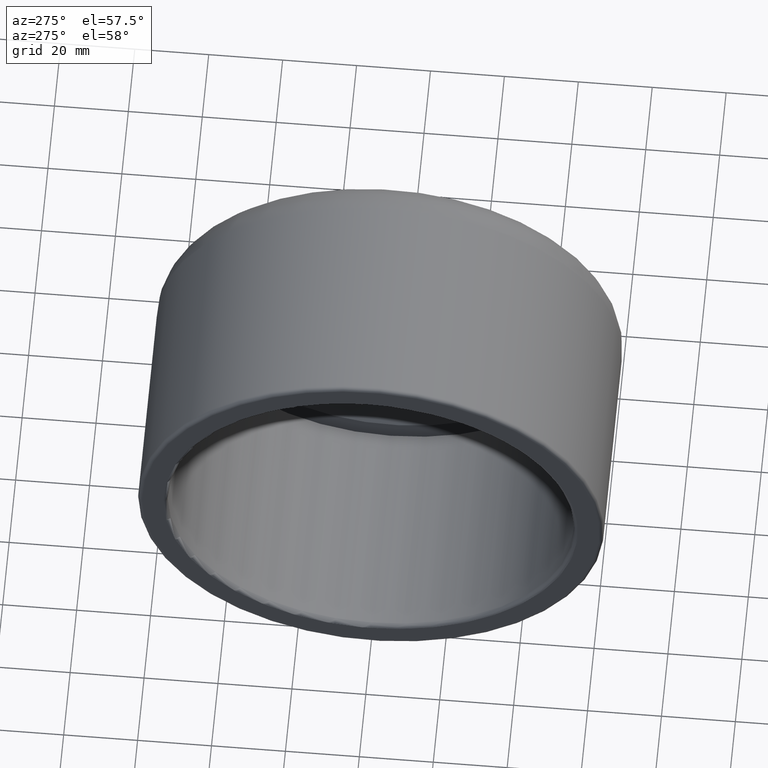
[diagram: clean part render]
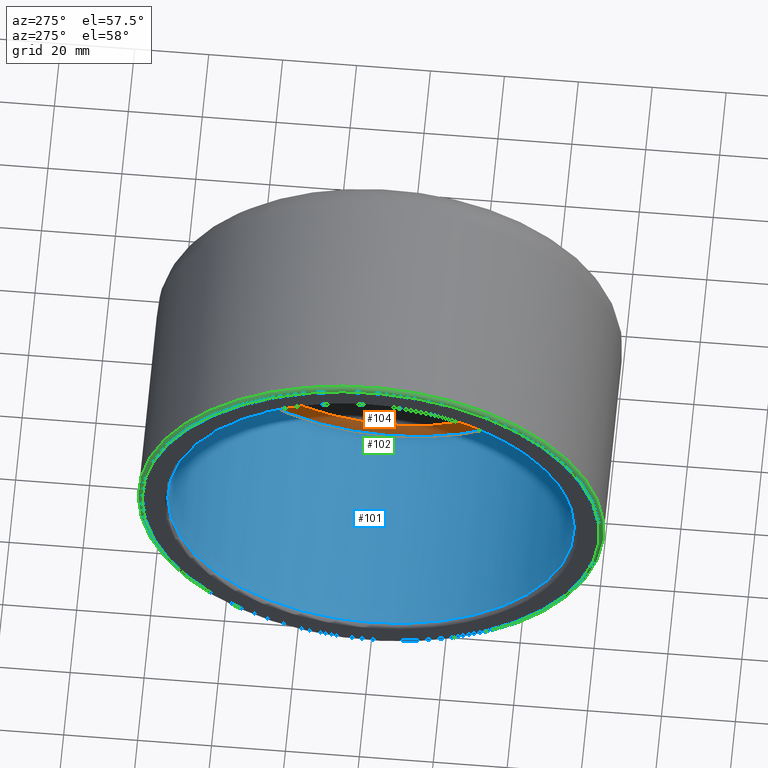
[diagram: same view with three faces highlighted in distinct colors, each labeled with its STEP entity id]
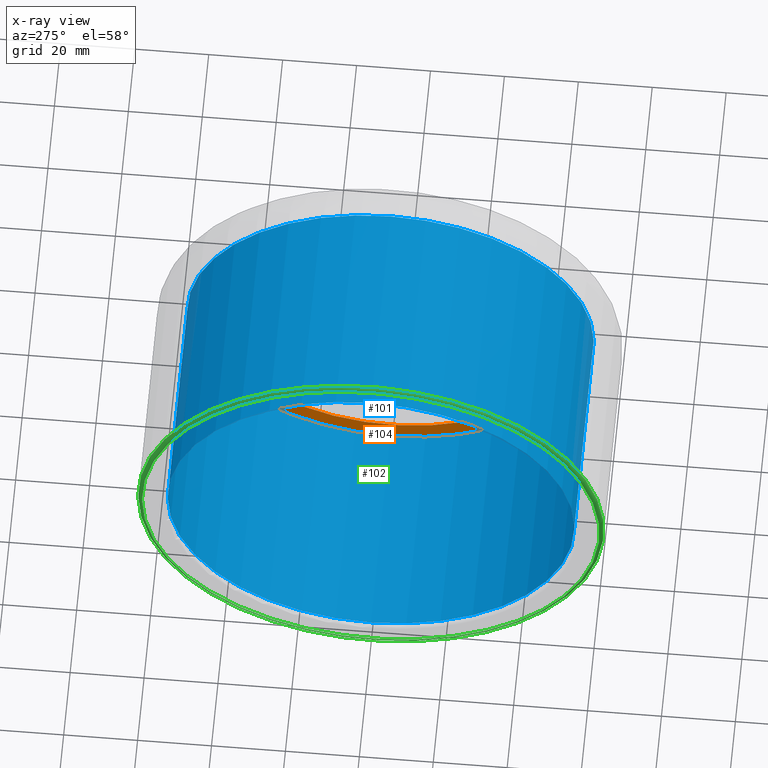
[diagram: x-ray of the same camera — body ghosted, the three highlighted faces saturated]
A machine part, auxiliary view with three faces highlighted in distinct colors.
The next image is the same camera in x-ray (body ghosted, the three faces saturated) — at least one of them is partly hidden behind the body in this view.
Their STEP definitions:

[orange] entity #104 — the highlighted planar face has unit normal (-1, -0, 0).
#16=PLANE('',#123);
#27=FACE_BOUND('',#52,.T.);
#36=FACE_OUTER_BOUND('',#51,.T.);
#51=EDGE_LOOP('',(#91));
#52=EDGE_LOOP('',(#92));
#59=CIRCLE('',#119,55.);
#60=CIRCLE('',#122,49.5);
#67=VERTEX_POINT('',#179);
#68=VERTEX_POINT('',#183);
#75=EDGE_CURVE('',#67,#67,#59,.T.);
#76=EDGE_CURVE('',#68,#68,#60,.T.);
#91=ORIENTED_EDGE('',*,*,#75,.F.);
#92=ORIENTED_EDGE('',*,*,#76,.T.);
#104=ADVANCED_FACE('',(#36,#27),#16,.T.);
#119=AXIS2_PLACEMENT_3D('',#180,#150,#151);
#122=AXIS2_PLACEMENT_3D('',#184,#156,#157);
#123=AXIS2_PLACEMENT_3D('',#185,#158,#159);
#150=DIRECTION('center_axis',(1.,1.18228567412327E-16,0.));
#151=DIRECTION('ref_axis',(0.,0.,-1.));
#156=DIRECTION('center_axis',(1.,1.18228567412327E-16,0.));
#157=DIRECTION('ref_axis',(0.,0.,-1.));
#158=DIRECTION('center_axis',(-1.,-1.18228567412327E-16,0.));
#159=DIRECTION('ref_axis',(0.,0.,1.));
#179=CARTESIAN_POINT('',(-24.,55.,0.));
#180=CARTESIAN_POINT('Origin',(-24.,-2.83748561789584E-15,0.));
#183=CARTESIAN_POINT('',(-24.,49.5,0.));
#184=CARTESIAN_POINT('Origin',(-24.,-2.83748561789584E-15,0.));
#185=CARTESIAN_POINT('Origin',(-24.,55.,0.));

[blue] entity #101 — the highlighted cylindrical surface (bore or boss wall) has radius 55 mm, axis along (1, 0, 0).
#20=CYLINDRICAL_SURFACE('',#118,55.);
#25=FACE_BOUND('',#47,.T.);
#33=FACE_OUTER_BOUND('',#46,.T.);
#46=EDGE_LOOP('',(#86));
#47=EDGE_LOOP('',(#87));
#56=CIRCLE('',#114,55.);
#59=CIRCLE('',#119,55.);
#64=VERTEX_POINT('',#171);
#67=VERTEX_POINT('',#179);
#72=EDGE_CURVE('',#64,#64,#56,.T.);
#75=EDGE_CURVE('',#67,#67,#59,.T.);
#86=ORIENTED_EDGE('',*,*,#75,.T.);
#87=ORIENTED_EDGE('',*,*,#72,.F.);
#101=ADVANCED_FACE('',(#33,#25),#20,.F.);
#114=AXIS2_PLACEMENT_3D('',#172,#140,#141);
#118=AXIS2_PLACEMENT_3D('',#178,#148,#149);
#119=AXIS2_PLACEMENT_3D('',#180,#150,#151);
#140=DIRECTION('center_axis',(1.,1.18228567412327E-16,0.));
#141=DIRECTION('ref_axis',(1.18592004903142E-16,-1.,1.83697019872103E-16));
#148=DIRECTION('center_axis',(1.,1.18228567412327E-16,0.));
#149=DIRECTION('ref_axis',(-1.40980701539702E-16,1.,0.));
#150=DIRECTION('center_axis',(1.,1.18228567412327E-16,0.));
#151=DIRECTION('ref_axis',(0.,0.,-1.));
#171=CARTESIAN_POINT('',(-83.9,55.,-3.36777869765522E-15));
#172=CARTESIAN_POINT('Origin',(-83.9,-9.91937680589422E-15,0.));
#178=CARTESIAN_POINT('Origin',(-54.5,-6.44345692397181E-15,0.));
#179=CARTESIAN_POINT('',(-24.,55.,0.));
#180=CARTESIAN_POINT('Origin',(-24.,-2.83748561789584E-15,0.));

[green] entity #102 — the highlighted toroidal blend (fillet) surface has major radius 61.9 mm and minor (blend) radius 1.1 mm.
#26=FACE_BOUND('',#49,.T.);
#34=FACE_OUTER_BOUND('',#48,.T.);
#48=EDGE_LOOP('',(#88));
#49=EDGE_LOOP('',(#89));
#55=CIRCLE('',#111,63.);
#58=CIRCLE('',#117,61.9);
#63=VERTEX_POINT('',#167);
#66=VERTEX_POINT('',#176);
#71=EDGE_CURVE('',#63,#63,#55,.T.);
#74=EDGE_CURVE('',#66,#66,#58,.T.);
#88=ORIENTED_EDGE('',*,*,#74,.T.);
#89=ORIENTED_EDGE('',*,*,#71,.T.);
#95=TOROIDAL_SURFACE('',#120,61.9,1.1);
#102=ADVANCED_FACE('',(#34,#26),#95,.T.);
#111=AXIS2_PLACEMENT_3D('',#168,#134,#135);
#117=AXIS2_PLACEMENT_3D('',#177,#146,#147);
#120=AXIS2_PLACEMENT_3D('',#181,#152,#153);
#134=DIRECTION('center_axis',(-1.,-1.18228567412327E-16,0.));
#135=DIRECTION('ref_axis',(1.18952466924124E-16,-1.,1.83697019872103E-16));
#146=DIRECTION('center_axis',(1.,1.18228567412327E-16,0.));
#147=DIRECTION('ref_axis',(1.18228567412327E-16,-1.,1.83697019872103E-16));
#152=DIRECTION('center_axis',(1.,1.18228567412327E-16,0.));
#153=DIRECTION('ref_axis',(0.,0.,-1.));
#167=CARTESIAN_POINT('',(-83.9,63.,-1.92881870865708E-14));
#168=CARTESIAN_POINT('Origin',(-83.9,-9.91937680589422E-15,0.));
#176=CARTESIAN_POINT('',(-85.,61.9,-3.79028184336106E-15));
#177=CARTESIAN_POINT('Origin',(-85.,-1.00494282300478E-14,0.));
#181=CARTESIAN_POINT('Origin',(-83.9,-9.91937680589422E-15,0.));